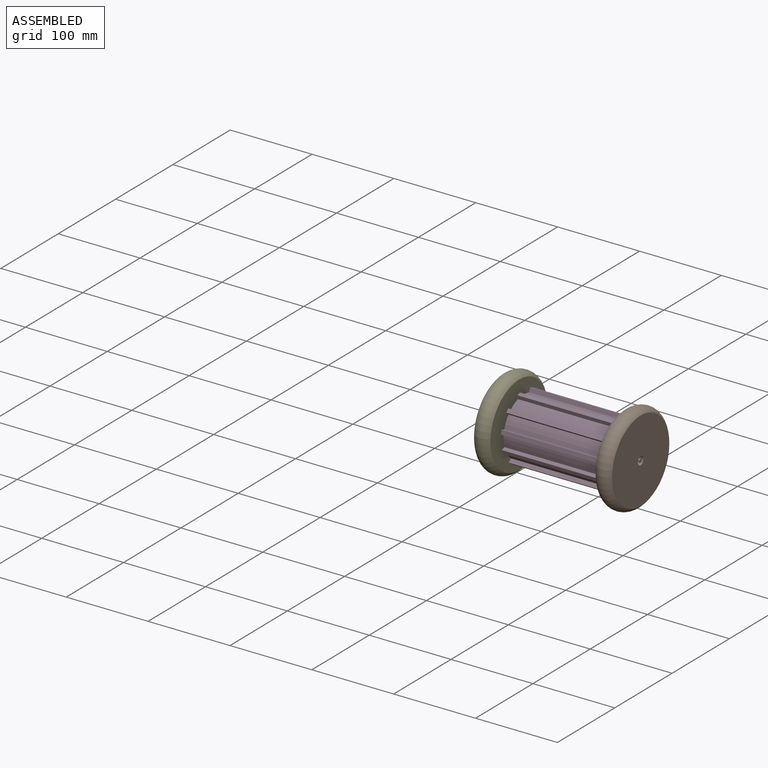
[diagram: assembled view]
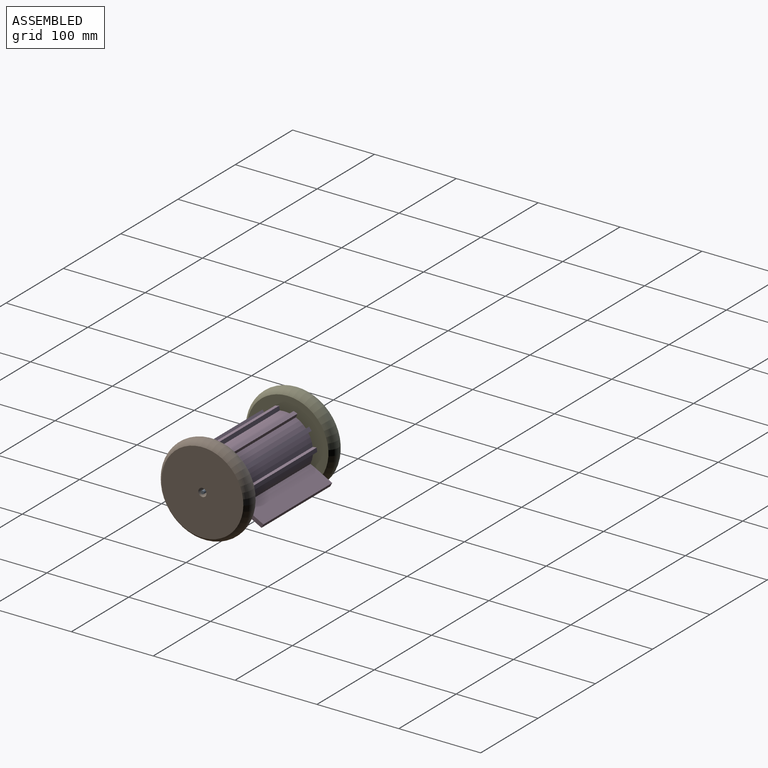
[diagram: assembled view, second angle]
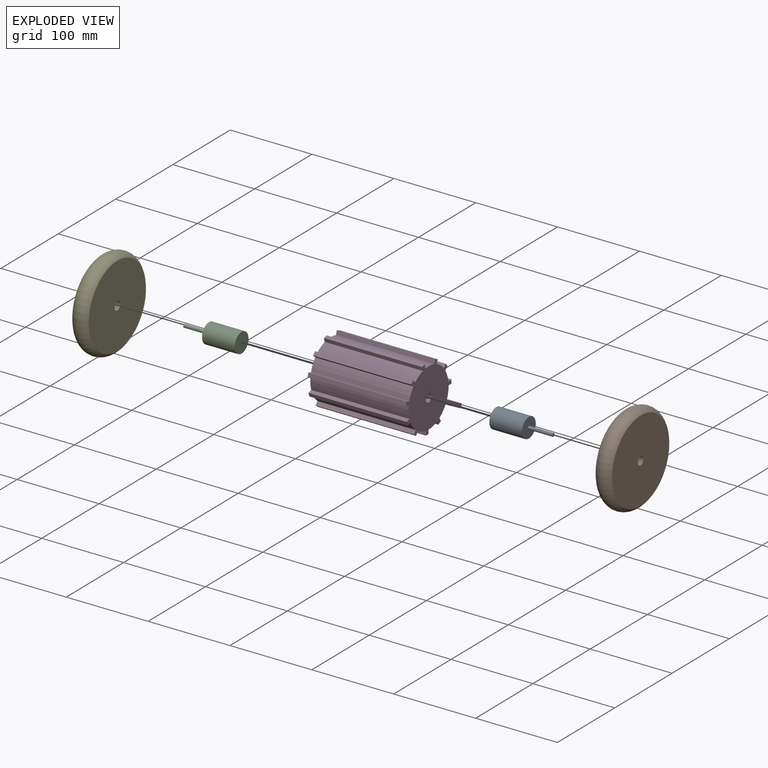
[diagram: exploded view]
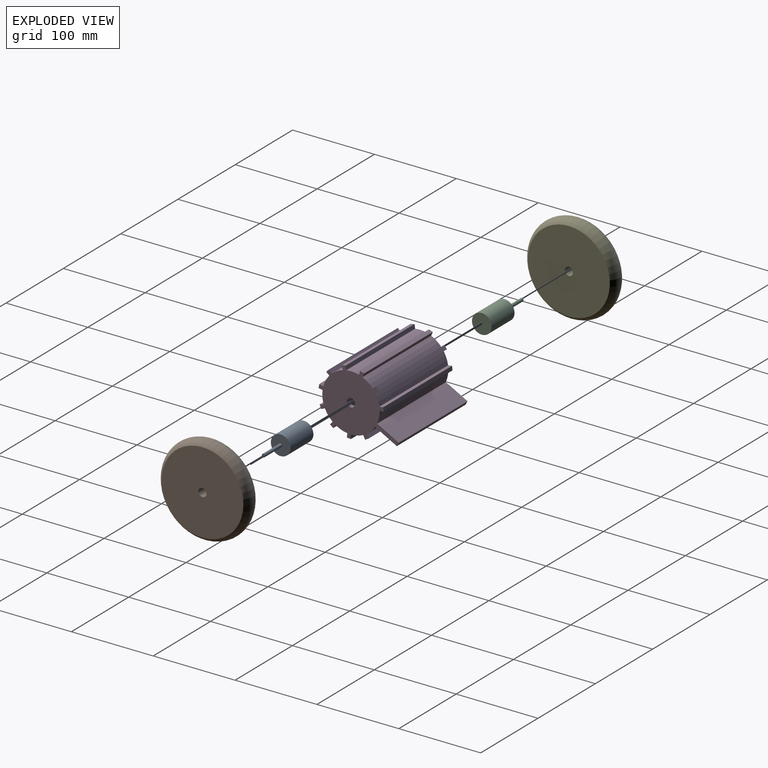
[diagram: exploded view, second angle]
ASSEMBLY  parts=5 mates=4
PART A: 5 faces, bbox 24x70x24 mm
  f0: plane 24x24mm, normal (0,-1,0), area 439.8mm2, adj f1,f4
  f1: cylinder r=12mm len=40mm, axis (0,1,0), area 3015.9mm2, adj f0,f2
  f2: plane 24x24mm, normal (0,1,0), area 452.4mm2, adj f1
  f3: plane 4x4mm, normal (0,-1,0), area 12.6mm2, adj f4
  f4: cylinder r=2mm len=30mm, axis (0,-1,0), area 377mm2, adj f0,f3
PART B: 4 faces, bbox 119.9x20x119.9 mm
  f0: cylinder r=5mm len=20mm, axis (0,-1,0), area 628.3mm2, adj f1,f2
  f1: plane 100x100mm, normal (0,1,0), area 7775.4mm2, adj f0,f3
  f2: plane 100x100mm, normal (0,-1,0), area 7775.4mm2, adj f0,f3
  f3: torus R=43.37mm, axis (0,1,0), area 7950.1mm2, adj f1,f2
PART C: same geometry as A
PART D: 53 faces, bbox 98x120x79.5 mm
  f0: plane 98x79.49mm, normal (0,1,0), area 4150mm2, adj f5,f7,f8,f9,f10,f11,f12,f13
  f1: plane 98x79.49mm, normal (0,-1,0), area 4150mm2, adj f3,f7,f8,f9,f10,f11,f12,f13
  f2: cylinder r=30mm len=110mm, axis (0,1,0), area 20734.5mm2, adj f4,f6
  f3: cylinder r=5mm len=10mm, axis (0,-1,0), area 157.1mm2, adj f1,f4
  f4: plane 60x60mm, normal (0,1,0), area 2748.9mm2, adj f2,f3
  f5: cylinder r=5mm len=10mm, axis (0,1,0), area 157.1mm2, adj f0,f6
  f6: plane 60x60mm, normal (0,-1,0), area 2748.9mm2, adj f2,f5
  f7: plane 120x4.21mm, normal (0.84,0,0.54), area 600mm2, adj f0,f1,f8,f49
  f8: cylinder r=35mm len=120mm, axis (0,-1,0), area 1873.7mm2, adj f0,f1,f7,f9
  f9: plane 120x4.25mm, normal (-0.53,0,-0.85), area 600mm2, adj f0,f1,f8,f50
  f10: plane 120x4.55mm, normal (0.42,0,0.91), area 600mm2, adj f0,f1,f11,f51
  f11: cylinder r=35mm len=120mm, axis (0,-1,0), area 1873.7mm2, adj f0,f1,f10,f12
  f12: plane 120x5mm, normal (0.02,0,-1), area 600mm2, adj f0,f1,f11,f13
  f13: plane 120x4.98mm, normal (1,0,0.08), area 600mm2, adj f0,f1,f12,f14
  f14: plane 120x4.95mm, normal (-0.14,0,0.99), area 600mm2, adj f0,f1,f13,f15
  f15: cylinder r=35mm len=120mm, axis (0,-1,0), area 1873.7mm2, adj f0,f1,f14,f16
  f16: plane 120x4.16mm, normal (0.55,0,-0.83), area 600mm2, adj f0,f1,f15,f17
  f17: plane 120x3.98mm, normal (0.8,0,0.61), area 600mm2, adj f0,f1,f16,f18
  f18: plane 120x3.78mm, normal (-0.65,0,0.76), area 600mm2, adj f0,f1,f17,f19
  f19: cylinder r=35mm len=120mm, axis (0,-1,0), area 1873.7mm2, adj f0,f1,f18,f20
  f20: plane 120x4.58mm, normal (0.92,0,-0.4), area 600mm2, adj f0,f1,f19,f21
  f21: plane 120x4.7mm, normal (0.34,0,0.94), area 600mm2, adj f0,f1,f20,f22
  f22: plane 120x4.8mm, normal (-0.96,0,0.28), area 600mm2, adj f0,f1,f21,f23
  f23: cylinder r=35mm len=120mm, axis (0,-1,0), area 1873.7mm2, adj f0,f1,f22,f24
  f24: plane 120x4.94mm, normal (0.99,0,0.16), area 600mm2, adj f0,f1,f23,f25
  f25: plane 120x4.88mm, normal (-0.22,0,0.98), area 600mm2, adj f0,f1,f24,f26
  f26: plane 120x4.8mm, normal (-0.96,0,-0.28), area 600mm2, adj f0,f1,f25,f27
  f27: cylinder r=35mm len=120mm, axis (0,-1,0), area 1873.7mm2, adj f0,f1,f26,f28
  f28: plane 120x3.72mm, normal (0.74,0,0.67), area 600mm2, adj f0,f1,f27,f29
  f29: plane 120x3.56mm, normal (-0.71,0,0.7), area 600mm2, adj f0,f1,f28,f30
  f30: plane 120x3.78mm, normal (-0.66,0,-0.76), area 600mm2, adj f0,f1,f29,f31
  f31: cylinder r=35mm len=120mm, axis (0,-1,0), area 1873.7mm2, adj f0,f1,f30,f32
  f32: plane 120x4.82mm, normal (0.27,0,0.96), area 600mm2, adj f0,f1,f31,f33
  f33: plane 120x4.89mm, normal (-0.98,0,0.2), area 600mm2, adj f0,f1,f32,f34
  f34: plane 120x4.95mm, normal (-0.14,0,-0.99), area 600mm2, adj f0,f1,f33,f35
  f35: cylinder r=35mm len=120mm, axis (0,-1,0), area 1873.7mm2, adj f0,f1,f34,f36
  f36: plane 120x4.77mm, normal (-0.3,0,0.95), area 600mm2, adj f0,f1,f35,f37
  f37: plane 120x4.67mm, normal (-0.93,0,-0.36), area 600mm2, adj f0,f1,f36,f38
  f38: plane 120x4.55mm, normal (0.41,0,-0.91), area 600mm2, adj f0,f1,f37,f39
  f39: cylinder r=35mm len=120mm, axis (0,-1,0), area 1873.7mm2, adj f0,f1,f38,f40
  f40: plane 120x3.83mm, normal (-0.77,0,0.64), area 600mm2, adj f0,f1,f39,f41
  f41: plane 120x4.03mm, normal (-0.59,0,-0.81), area 600mm2, adj f0,f1,f40,f42
  f42: plane 120x4.2mm, normal (0.84,0,-0.54), area 600mm2, adj f0,f1,f41,f43
  f43: cylinder r=35mm len=120mm, axis (0,-1,0), area 1873.7mm2, adj f0,f1,f42,f44
  f44: plane 120x4.96mm, normal (-0.99,0,0.13), area 600mm2, adj f0,f1,f43,f45
  f45: plane 120x4.99mm, normal (-0.06,0,-1), area 600mm2, adj f0,f1,f44,f46
  f46: plane 120x5mm, normal (1,0,0), area 600mm2, adj f0,f1,f45,f47
  f47: cylinder r=35mm len=120mm, axis (0,-1,0), area 1873.7mm2, adj f0,f1,f46,f48
  f48: plane 120x4.51mm, normal (-0.9,0,-0.43), area 600mm2, adj f0,f1,f47,f49
  f49: plane 120x4.37mm, normal (0.49,0,-0.87), area 600mm2, adj f0,f1,f7,f48
  f50: plane 120x22.04mm, normal (-0.47,0,-0.88), area 3000mm2, adj f0,f1,f9,f52
  f51: plane 120x22.04mm, normal (0.47,0,0.88), area 3000mm2, adj f0,f1,f10,f52
  f52: plane 120x4.41mm, normal (0.88,0,-0.47), area 600mm2, adj f0,f1,f50,f51
PART E: same geometry as B
PLACE A rot(axis=(0,0,1),90deg) t=(-72.07,-9.26,-26.61)mm
PLACE B rot(axis=(0.65,-0.65,0.38),138.6deg) t=(-51.92,-9.26,-26.61)mm
PLACE C rot(axis=(0,0,-1),90deg) t=(-180.27,-9.26,-26.61)mm
PLACE D rot(axis=(0,0,1),90deg) t=(-124.92,-9.26,-26.61)mm
PLACE E rot(axis=(0,0,1),90deg) t=(-200.42,-9.26,-26.61)mm
MATE fastened A.f1 <-> D.f2  axis (-1,0,0) through (-71.92,-9.26,-26.61)mm
MATE revolute C.f1 <-> E.f0  axis (-1,0,0) through (-210.42,-9.26,-26.61)mm
MATE revolute A.f1 <-> B.f0  axis (1,0,0) through (-41.92,-9.26,-26.61)mm
MATE fastened C.f1 <-> D.f3  axis (-1,0,0) through (-180.42,-9.26,-26.61)mm
